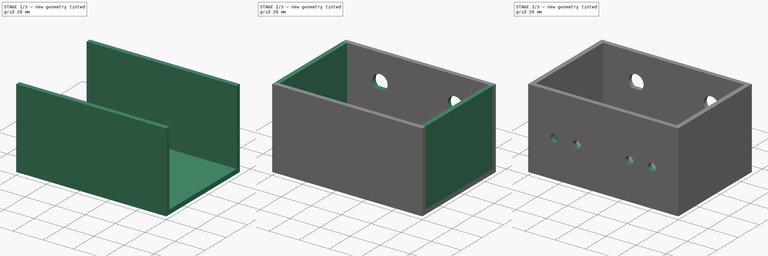
[diagram: build sequence overview — one tinted view per stage of 3, left to right]
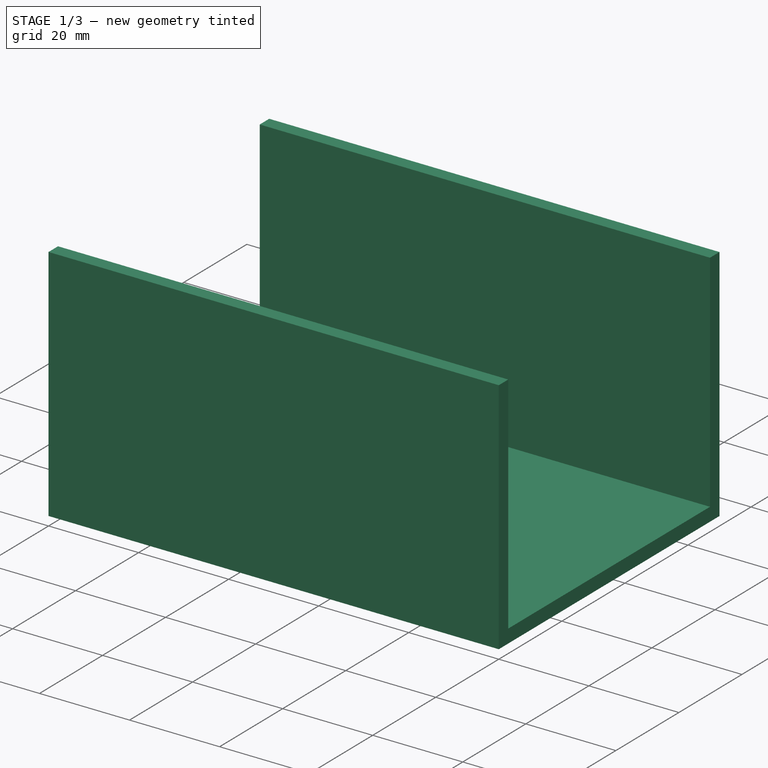
[diagram: stage 1 of 3 — iso view after this stage's code; geometry added in this stage tinted green]
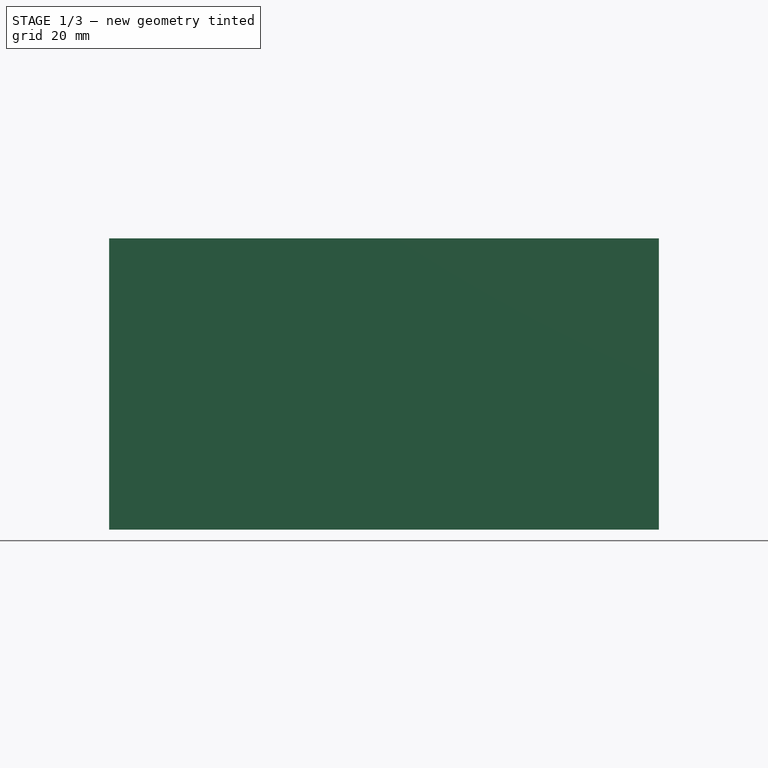
[diagram: stage 1 of 3 — front view after this stage's code; geometry added in this stage tinted green]
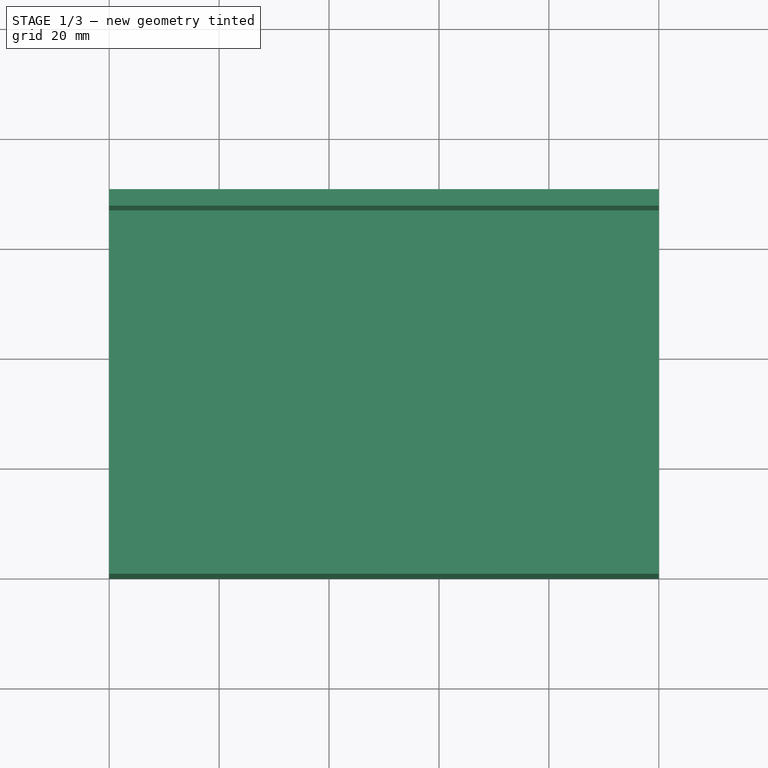
[diagram: stage 1 of 3 — top view after this stage's code; geometry added in this stage tinted green]
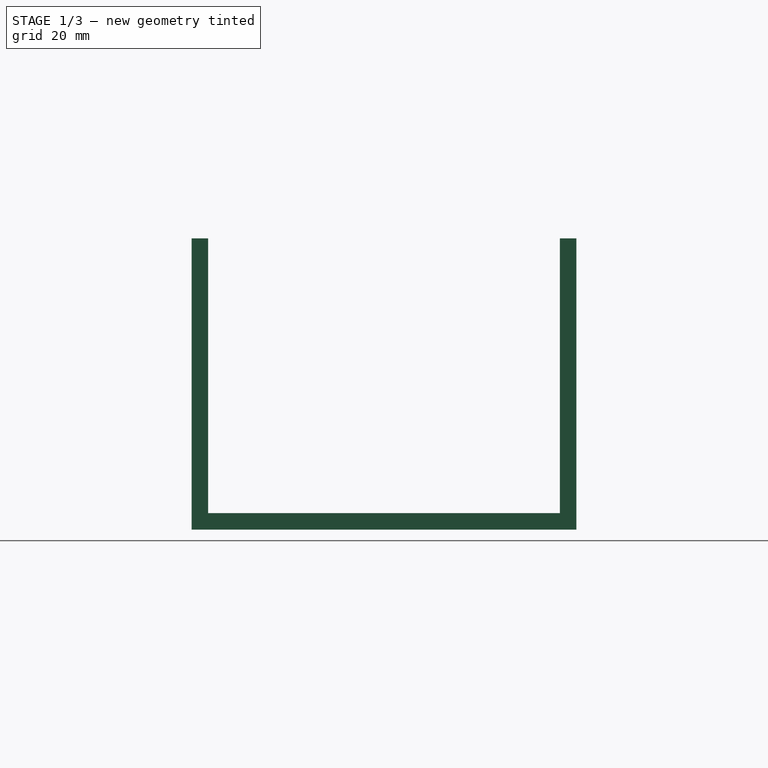
[diagram: stage 1 of 3 — right view after this stage's code; geometry added in this stage tinted green]
FCSTD DOCUMENT  (FreeCAD 0.19R24291 (Git))
Label: ResponseBox_a
License: All rights reserved
LicenseURL: http://en.wikipedia.org/wiki/All_rights_reserved
objects: Sketcher::SketchObject×6, PartDesign::Pad×3, PartDesign::Pocket×3, PartDesign::Body×1
note: 19 computed .brp shape members not serialized (recipe doc carries the construction recipe); baked Part::Feature solids carry a one-line shape summary decoded from their .brp

FEATURE [Sketcher::SketchObject] Sketch
  FullyConstrained = true
  MapMode = 5
  Support = -> [XY_Plane]
  sketch-geometry (4):
    g0: LineSegment StartX=0 StartY=70 StartZ=0 EndX=100 EndY=70 EndZ=0
    g1: LineSegment StartX=100 StartY=70 StartZ=0 EndX=100 EndY=0 EndZ=0
    g2: LineSegment StartX=100 StartY=0 StartZ=0 EndX=0 EndY=0 EndZ=0
    g3: LineSegment StartX=0 StartY=0 StartZ=0 EndX=0 EndY=70 EndZ=0
  constraints (11):
    c: Coincident(g0,g1)
    c: Coincident(g1,g2)
    c: Coincident(g2,g3)
    c: Coincident(g3,g0)
    c: Horizontal(g0)
    c: Horizontal(g2)
    c: Vertical(g1)
    c: Vertical(g3)
    c: DistanceX(g0,g0) = 100
    c: DistanceY(g3,g3) = 70
    c: Coincident(g-1,g2)
FEATURE [PartDesign::Pad] Pad  label="Bottom"
  Direction = (1,1,1)
  Length = 3
  Length2 = 100
  Profile = -> Sketch
  Type = 0
FEATURE [Sketcher::SketchObject] Sketch001
  ExternalGeometry = -> [Pad]
  FullyConstrained = true
  MapMode = 5
  Placement = pos=(0,0,3) rot=(0,0,1;0rad)
  Support = -> [Pad]
  sketch-geometry (8):
    g0: LineSegment StartX=0 StartY=70 StartZ=0 EndX=100 EndY=70 EndZ=0
    g1: LineSegment StartX=100 StartY=70 StartZ=0 EndX=100 EndY=67 EndZ=0
    g2: LineSegment StartX=100 StartY=67 StartZ=0 EndX=0 EndY=67 EndZ=0
    g3: LineSegment StartX=0 StartY=67 StartZ=0 EndX=0 EndY=70 EndZ=0
    g4: LineSegment StartX=0 StartY=3 StartZ=0 EndX=100 EndY=3 EndZ=0
    g5: LineSegment StartX=100 StartY=3 StartZ=0 EndX=100 EndY=-4e-16 EndZ=0
    g6: LineSegment StartX=100 StartY=-4e-16 StartZ=0 EndX=0 EndY=-4e-16 EndZ=0
    g7: LineSegment StartX=0 StartY=-4e-16 StartZ=0 EndX=0 EndY=3 EndZ=0
  constraints (22):
    c: Coincident(g0,g1)
    c: Coincident(g1,g2)
    c: Coincident(g2,g3)
    c: Coincident(g3,g0)
    c: Horizontal(g0)
    c: Horizontal(g2)
    c: Vertical(g1)
    c: Vertical(g3)
    c: Coincident(g4,g5)
    c: Coincident(g5,g6)
    c: Coincident(g6,g7)
    c: Coincident(g7,g4)
    c: Horizontal(g4)
    c: Horizontal(g6)
    c: Vertical(g5)
    c: Vertical(g7)
    c: DistanceY(g3,g3) = 3
    c: DistanceY(g5,g5) = 3
    c: Coincident(g6,g-1)
    c: Coincident(g0,g-3)
    c: DistanceX(g1,g-3) = 0
    c: DistanceX(g4,g-4) = 0
FEATURE [PartDesign::Pad] Pad001  label="Side_Walls"
  BaseFeature = -> Pad
  Direction = (1,1,1)
  Length = 50
  Length2 = 100
  Profile = -> Sketch001
  Type = 0
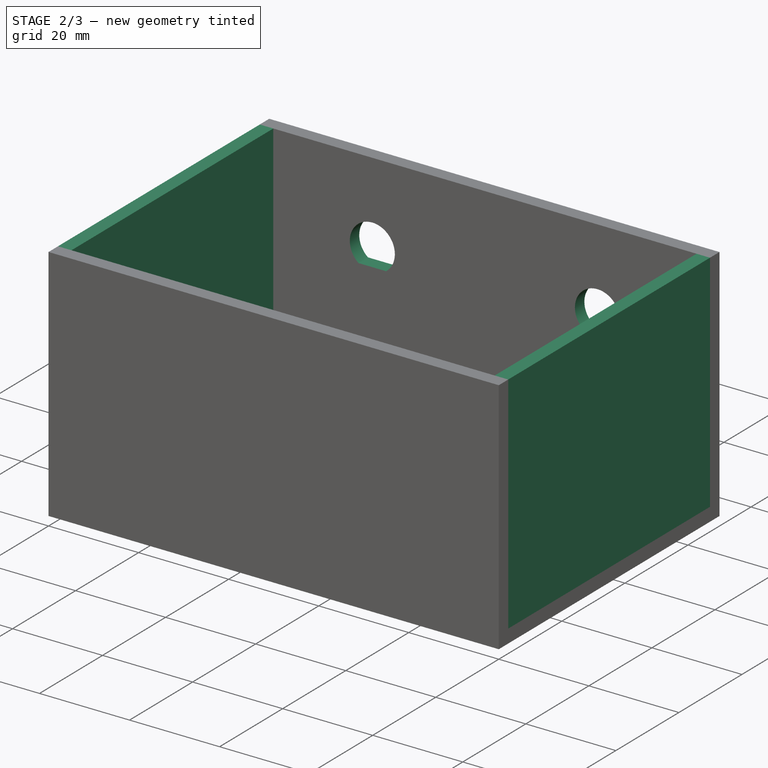
[diagram: stage 2 of 3 — iso view after this stage's code; geometry added in this stage tinted green]
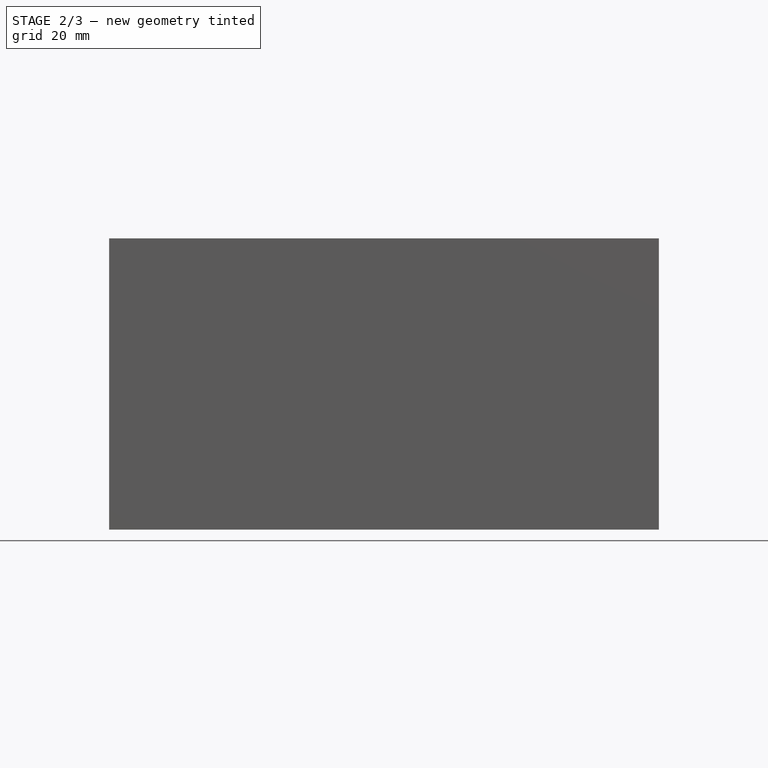
[diagram: stage 2 of 3 — front view after this stage's code; geometry added in this stage tinted green]
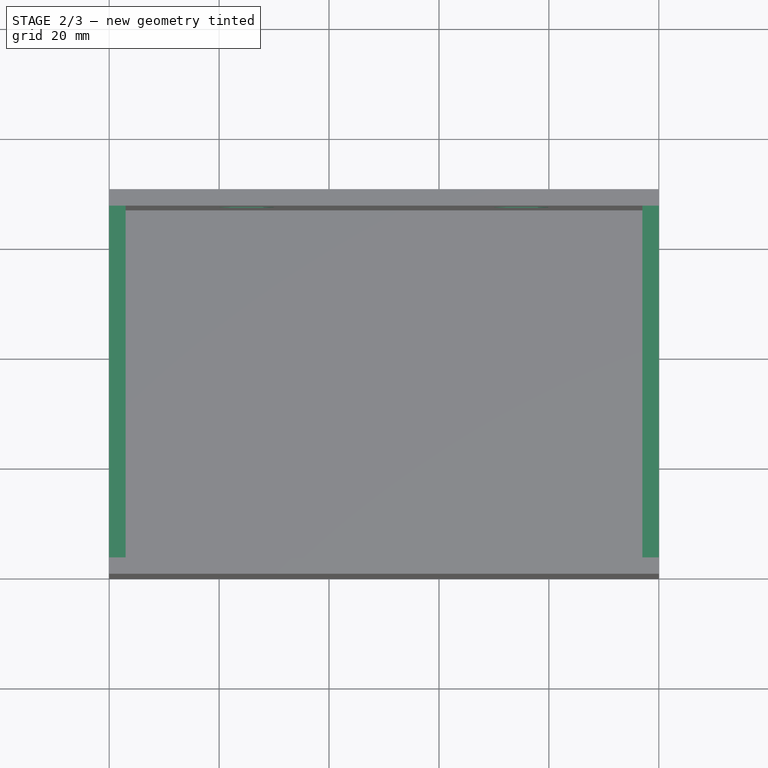
[diagram: stage 2 of 3 — top view after this stage's code; geometry added in this stage tinted green]
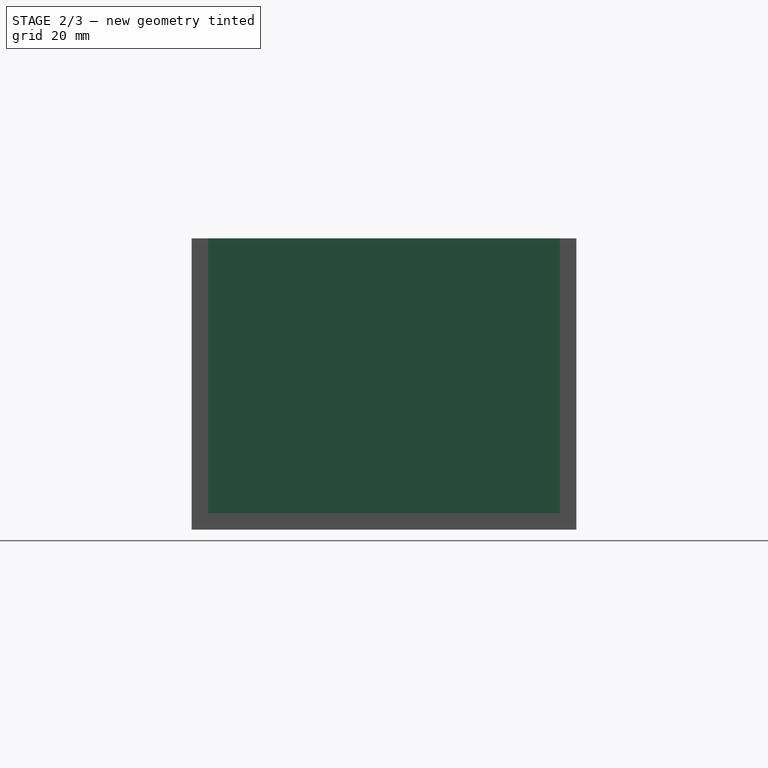
[diagram: stage 2 of 3 — right view after this stage's code; geometry added in this stage tinted green]
FEATURE [Sketcher::SketchObject] Sketch002
  ExternalGeometry = -> [Pad001]
  FullyConstrained = true
  MapMode = 5
  Placement = pos=(0,0,3) rot=(0,0,1;0rad)
  Support = -> [Pad001]
  sketch-geometry (8):
    g0: LineSegment StartX=0 StartY=70 StartZ=0 EndX=3 EndY=70 EndZ=0
    g1: LineSegment StartX=3 StartY=70 StartZ=0 EndX=3 EndY=0 EndZ=0
    g2: LineSegment StartX=3 StartY=0 StartZ=0 EndX=0 EndY=0 EndZ=0
    g3: LineSegment StartX=0 StartY=0 StartZ=0 EndX=0 EndY=70 EndZ=0
    g4: LineSegment StartX=97 StartY=70 StartZ=0 EndX=100 EndY=70 EndZ=0
    g5: LineSegment StartX=100 StartY=70 StartZ=0 EndX=100 EndY=0 EndZ=0
    g6: LineSegment StartX=100 StartY=0 StartZ=0 EndX=97 EndY=0 EndZ=0
    g7: LineSegment StartX=97 StartY=0 StartZ=0 EndX=97 EndY=70 EndZ=0
  constraints (22):
    c: Coincident(g0,g1)
    c: Coincident(g1,g2)
    c: Coincident(g2,g3)
    c: Coincident(g3,g0)
    c: Horizontal(g0)
    c: Horizontal(g2)
    c: Vertical(g1)
    c: Vertical(g3)
    c: Coincident(g4,g5)
    c: Coincident(g5,g6)
    c: Coincident(g6,g7)
    c: Coincident(g7,g4)
    c: Horizontal(g4)
    c: Horizontal(g6)
    c: Vertical(g5)
    c: Vertical(g7)
    c: DistanceX(g0,g0) = 3
    c: DistanceX(g4,g4) = 3
    c: Coincident(g0,g-3)
    c: Coincident(g4,g-3)
    c: DistanceY(g-1,g1) = 0
    c: DistanceY(g-4,g6) = 0
FEATURE [PartDesign::Pad] Pad002  label="TopAndBottomWalls"
  BaseFeature = -> Pad001
  Direction = (1,1,1)
  Length = 50
  Length2 = 100
  Profile = -> Sketch002
  Type = 0
FEATURE [Sketcher::SketchObject] Sketch003
  FullyConstrained = false
  MapMode = 5
  Placement = pos=(0,70,0) rot=(0,0.707107,0.707107;3.14159rad)
  Support = -> [Pad002]
  sketch-geometry (4):
    g0: ArcOfCircle CenterX=-75 CenterY=35 CenterZ=0 NormalX=0 NormalY=0 NormalZ=1 AngleXU=0 Radius=5 StartAngle=5.35641 EndAngle=10.3516
    g1: ArcOfCircle CenterX=-25 CenterY=35 CenterZ=0 NormalX=0 NormalY=0 NormalZ=1 AngleXU=0 Radius=5 StartAngle=5.37166 EndAngle=10.3363
    g2: LineSegment StartX=-78.0021 StartY=31.0016 StartZ=0 EndX=-71.9979 EndY=31.0016 EndZ=0
    g3: LineSegment StartX=-28.0627 StartY=31.0478 StartZ=0 EndX=-21.9373 EndY=31.0478 EndZ=0
  constraints (12):
    c: Radius(g0) = 5
    c: Radius(g1) = 5
    c: DistanceY(g1,g0) = 0
    c: DistanceX(g0,g1) = 50
    c: DistanceX(g1,g-1) = 25
    c: DistanceY(g-1,g1) = 35
    c: Horizontal(g2)
    c: Horizontal(g3)
    c: Coincident(g2,g0)
    c: Coincident(g2,g0)
    c: Coincident(g1,g3)
    c: Coincident(g3,g1)
FEATURE [PartDesign::Pocket] Pocket  label="BNC_holes"
  BaseFeature = -> Pad002
  Length = 4
  Length2 = 100
  Profile = -> Sketch003
  Type = 0
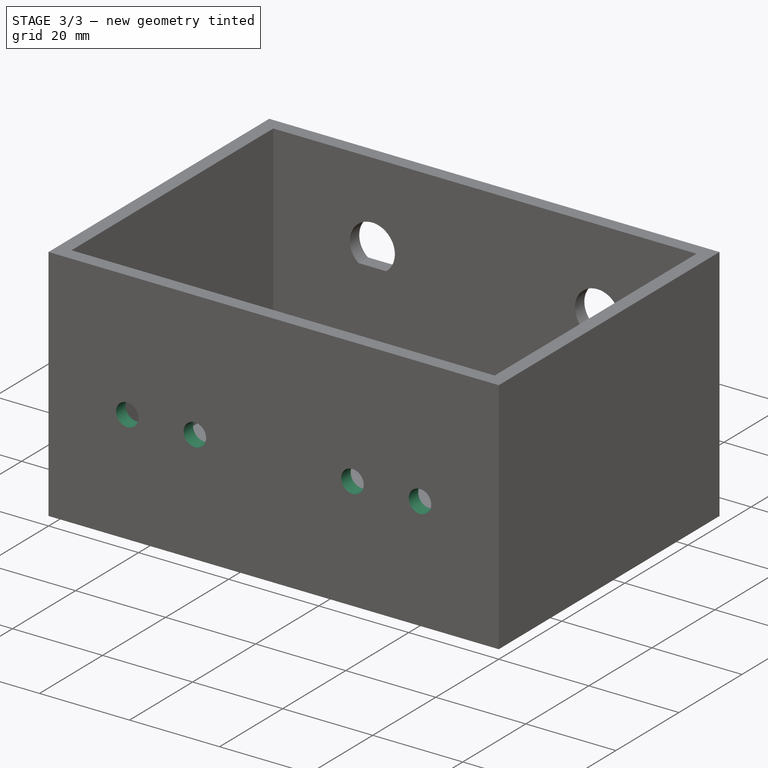
[diagram: stage 3 of 3 — iso view after this stage's code; geometry added in this stage tinted green]
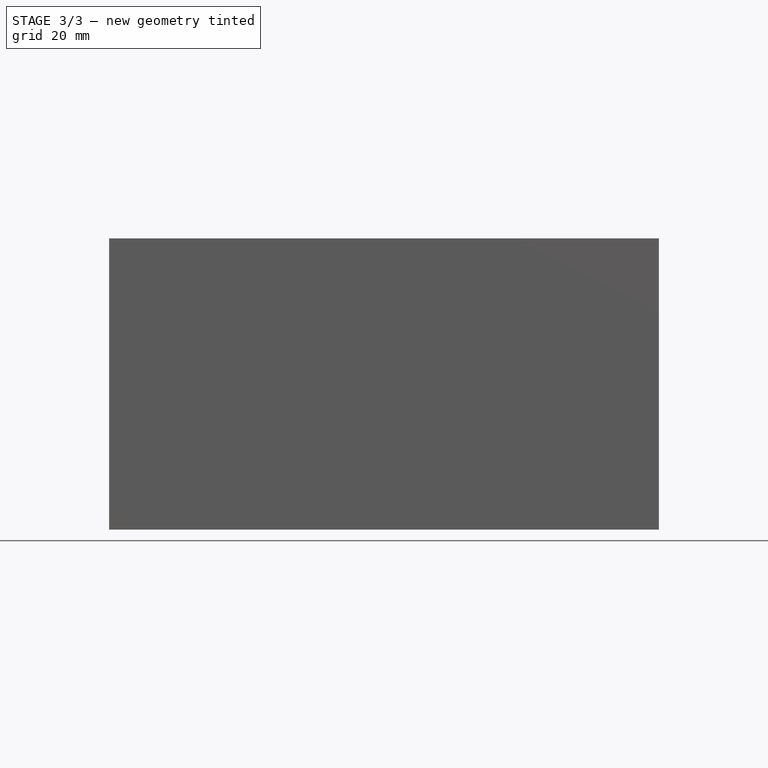
[diagram: stage 3 of 3 — front view after this stage's code; geometry added in this stage tinted green]
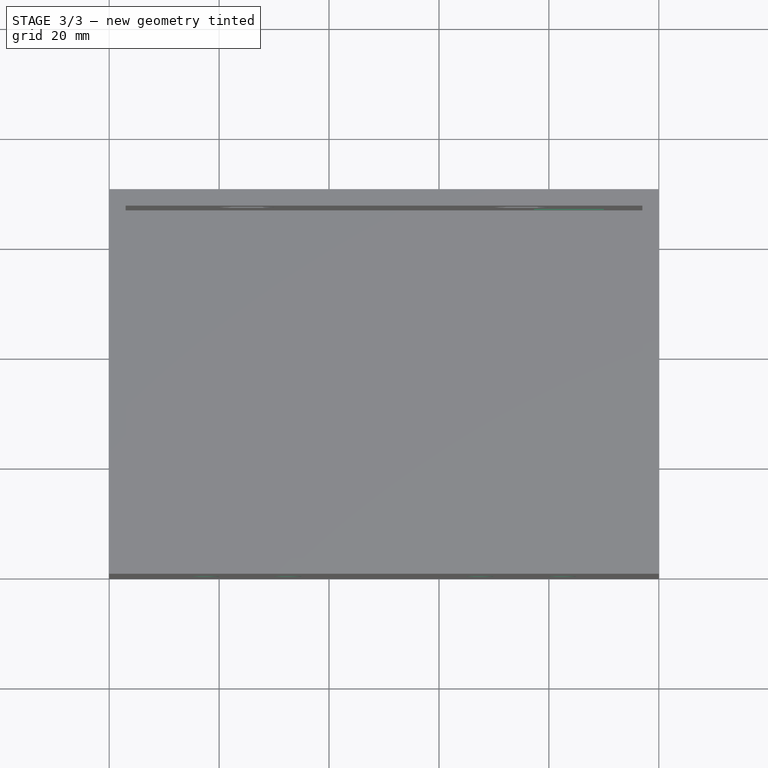
[diagram: stage 3 of 3 — top view after this stage's code; geometry added in this stage tinted green]
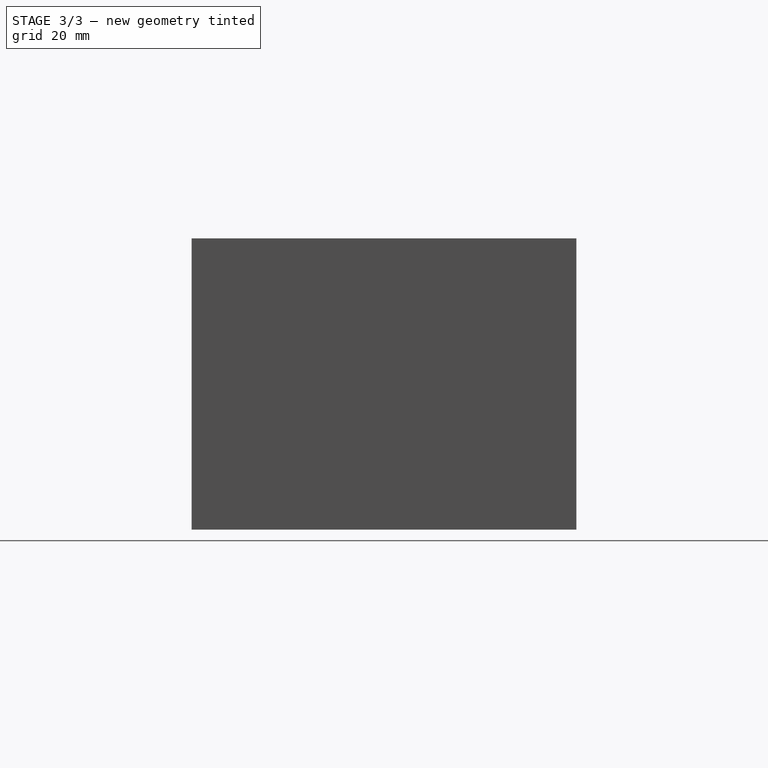
[diagram: stage 3 of 3 — right view after this stage's code; geometry added in this stage tinted green]
FEATURE [Sketcher::SketchObject] Sketch004
  FullyConstrained = true
  MapMode = 5
  Placement = pos=(0,-4e-16,0) rot=(1,0,0;1.5708rad)
  Support = -> [Pocket]
  sketch-geometry (4):
    g0: Circle CenterX=17.5 CenterY=25 CenterZ=0 NormalX=0 NormalY=0 NormalZ=1 AngleXU=0 Radius=2.5
    g1: Circle CenterX=32.5 CenterY=25 CenterZ=0 NormalX=0 NormalY=0 NormalZ=1 AngleXU=0 Radius=2.5
    g2: Circle CenterX=67.5 CenterY=25 CenterZ=0 NormalX=0 NormalY=0 NormalZ=1 AngleXU=0 Radius=2.5
    g3: Circle CenterX=82.5 CenterY=25 CenterZ=0 NormalX=0 NormalY=0 NormalZ=1 AngleXU=0 Radius=2.5
  constraints (12):
    c: Radius(g0) = 2.5
    c: Radius(g1) = 2.5
    c: Radius(g2) = 2.5
    c: Radius(g3) = 2.5
    c: DistanceY(g1,g0) = 0
    c: DistanceY(g2,g1) = 0
    c: DistanceY(g2,g3) = 0
    c: DistanceX(g0,g1) = 15
    c: DistanceX(g2,g3) = 15
    c: DistanceX(g1,g2) = 35
    c: DistanceX(g-1,g0) = 17.5
    c: DistanceY(g-1,g0) = 25
FEATURE [PartDesign::Pocket] Pocket001  label="Fiber_holes"
  BaseFeature = -> Pocket
  Length = 4
  Length2 = 100
  Profile = -> Sketch004
  Type = 0
FEATURE [Sketcher::SketchObject] Sketch005
  ExternalGeometry = -> [Pocket001]
  FullyConstrained = true
  MapMode = 5
  Placement = pos=(0,70,0) rot=(0,0.707107,0.707107;3.14159rad)
  Support = -> [Pocket001]
  sketch-geometry (4):
    g0: LineSegment StartX=-90 StartY=17 StartZ=0 EndX=-77.3 EndY=17 EndZ=0
    g1: LineSegment StartX=-77.3 StartY=17 StartZ=0 EndX=-77.3 EndY=8 EndZ=0
    g2: LineSegment StartX=-77.3 StartY=8 StartZ=0 EndX=-90 EndY=8 EndZ=0
    g3: LineSegment StartX=-90 StartY=8 StartZ=0 EndX=-90 EndY=17 EndZ=0
  constraints (12):
    c: Coincident(g0,g1)
    c: Coincident(g1,g2)
    c: Coincident(g2,g3)
    c: Coincident(g3,g0)
    c: Horizontal(g0)
    c: Horizontal(g2)
    c: Vertical(g1)
    c: Vertical(g3)
    c: DistanceX(g0,g0) = 12.7
    c: DistanceY(g3,g3) = 9
    c: DistanceX(g-3,g2) = 10
    c: DistanceY(g-3,g2) = 5
FEATURE [PartDesign::Pocket] Pocket002  label="USB"
  BaseFeature = -> Pocket001
  Length = 4
  Length2 = 100
  Profile = -> Sketch005
  Type = 0
FEATURE [PartDesign::Body] Body
  Group = -> [Sketch,Pad,Sketch001,Pad001,Sketch002,Pad002,Sketch003,Pocket,Sketch004,Pocket001,Sketch005,Pocket002]
  Origin = -> Origin
  Tip = -> Pocket002
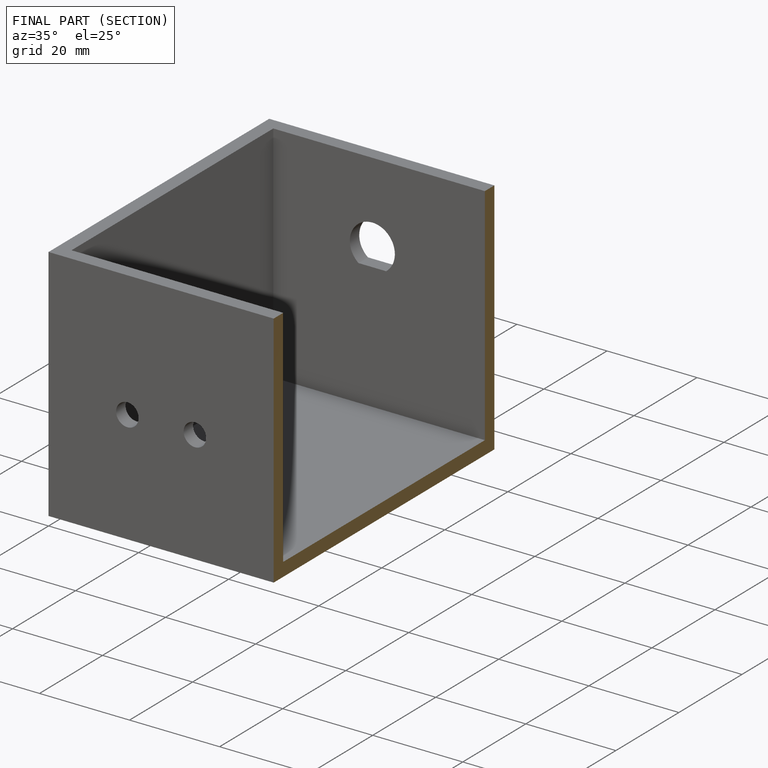
[diagram: finished part — half-section view (interior)]
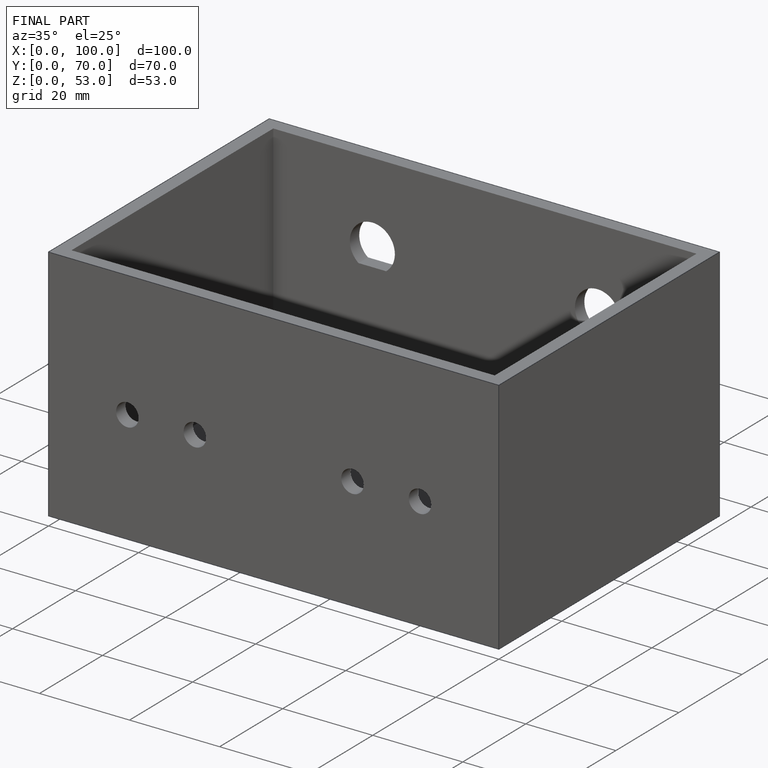
[diagram: finished part — iso view with bounding-box wireframe]
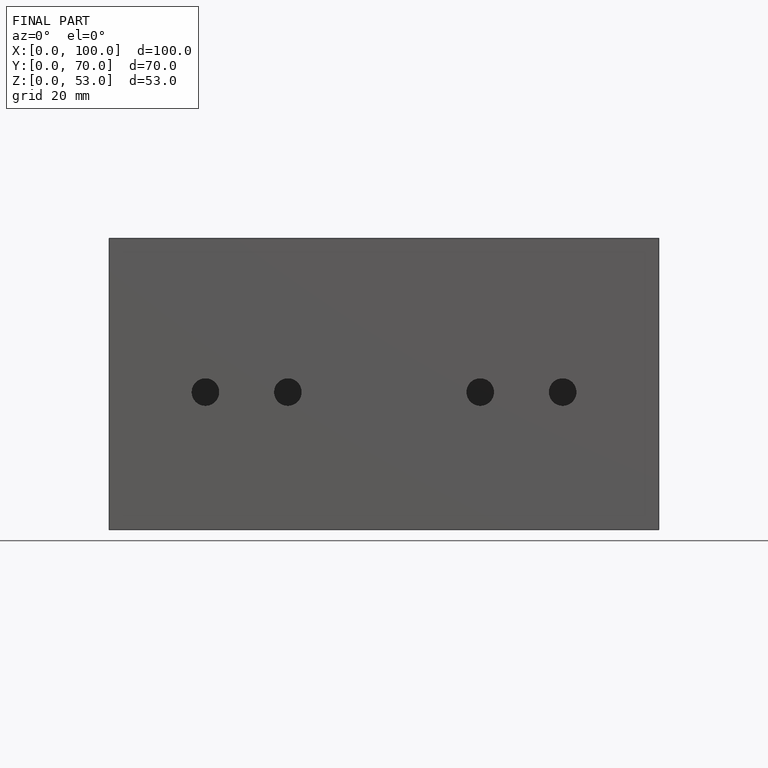
[diagram: finished part — front view with bounding-box wireframe]
